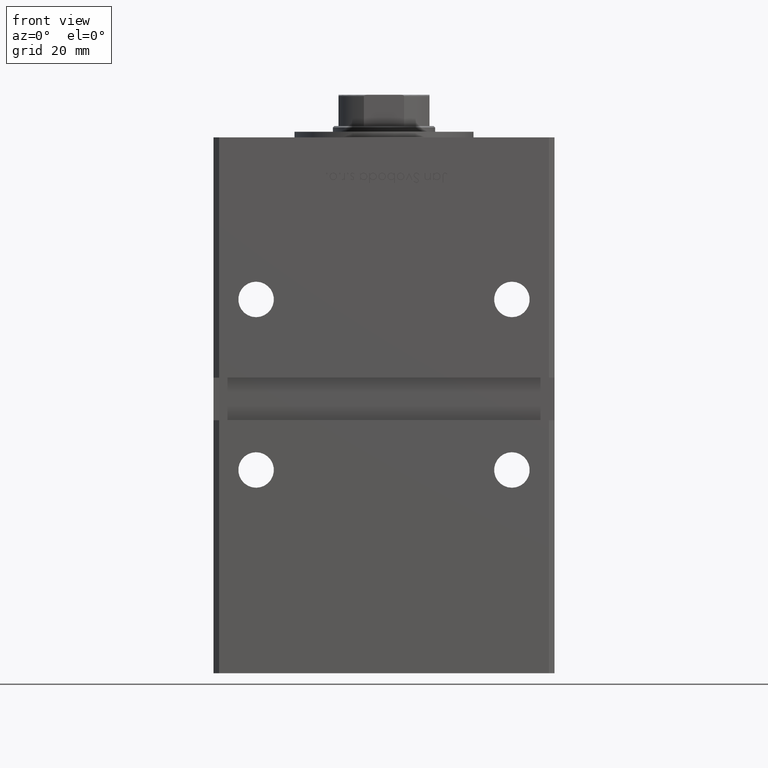
[diagram: clean part render]
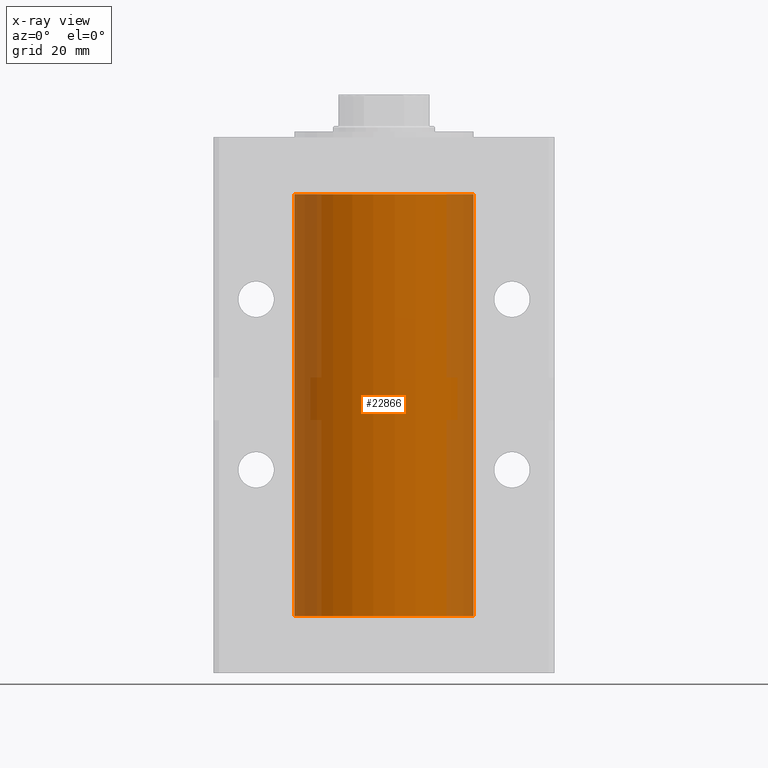
[diagram: x-ray — body ghosted, one internal face saturated and labeled with its STEP entity id]
A machine part, front view, then the same camera in x-ray: the body is ghosted and one INTERNAL B-rep face — a face not visible from any outside direction — is saturated and labeled: STEP entity #22866.
In plain terms, the highlighted cylindrical surface (partial cylindrical patch) has radius 31.5 mm, axis along (-0, -0, -1).
Its self-contained STEP definition (entity closure, byte-faithful):
#893 = ORIENTED_EDGE ( 'NONE', *, *, #38949, .T. ) ;
#2545 = ORIENTED_EDGE ( 'NONE', *, *, #35792, .F. ) ;
#4080 = CIRCLE ( 'NONE', #32391, 31.50000000000000000 ) ;
#4151 = EDGE_CURVE ( 'NONE', #37972, #30508, #30192, .T. ) ;
#4313 = DIRECTION ( 'NONE',  ( 1.000000000000000000, 0.000000000000000000, 0.000000000000000000 ) ) ;
#4342 = VERTEX_POINT ( 'NONE', #44964 ) ;
#4911 = CARTESIAN_POINT ( 'NONE',  ( -31.50000000000000000, 0.000000000000000000, 148.5000000000000000 ) ) ;
#5352 = EDGE_LOOP ( 'NONE', ( #34358, #893, #40226, #2545 ) ) ;
#7266 = CYLINDRICAL_SURFACE ( 'NONE', #25111, 31.50000000000000000 ) ;
#13231 = DIRECTION ( 'NONE',  ( -0.000000000000000000, -0.000000000000000000, -1.000000000000000000 ) ) ;
#18534 = CARTESIAN_POINT ( 'NONE',  ( 31.50000000000000000, 3.857637417314162689E-15, 0.000000000000000000 ) ) ;
#18669 = DIRECTION ( 'NONE',  ( -0.000000000000000000, 0.000000000000000000, 1.000000000000000000 ) ) ;
#21388 = CARTESIAN_POINT ( 'NONE',  ( 31.50000000000000000, 3.857637417314162689E-15, 148.5000000000000000 ) ) ;
#22041 = FACE_OUTER_BOUND ( 'NONE', #5352, .T. ) ;
#22866 = ADVANCED_FACE ( 'NONE', ( #22041 ), #7266, .F. ) ;
#25111 = AXIS2_PLACEMENT_3D ( 'NONE', #52110, #40271, #36253 ) ;
#25298 = LINE ( 'NONE', #4911, #29658 ) ;
#26411 = LINE ( 'NONE', #51143, #31474 ) ;
#26983 = DIRECTION ( 'NONE',  ( 1.000000000000000000, 0.000000000000000000, 0.000000000000000000 ) ) ;
#29658 = VECTOR ( 'NONE', #13231, 1000.000000000000000 ) ;
#30192 = CIRCLE ( 'NONE', #39651, 31.50000000000000000 ) ;
#30508 = VERTEX_POINT ( 'NONE', #18534 ) ;
#31455 = CARTESIAN_POINT ( 'NONE',  ( 0.000000000000000000, 0.000000000000000000, 148.5000000000000000 ) ) ;
#31474 = VECTOR ( 'NONE', #37714, 1000.000000000000000 ) ;
#32391 = AXIS2_PLACEMENT_3D ( 'NONE', #31455, #35497, #4313 ) ;
#34358 = ORIENTED_EDGE ( 'NONE', *, *, #40259, .T. ) ;
#35497 = DIRECTION ( 'NONE',  ( -0.000000000000000000, 0.000000000000000000, 1.000000000000000000 ) ) ;
#35792 = EDGE_CURVE ( 'NONE', #4342, #37972, #25298, .T. ) ;
#36253 = DIRECTION ( 'NONE',  ( -1.000000000000000000, 0.000000000000000000, 0.000000000000000000 ) ) ;
#37714 = DIRECTION ( 'NONE',  ( -0.000000000000000000, -0.000000000000000000, -1.000000000000000000 ) ) ;
#37972 = VERTEX_POINT ( 'NONE', #47990 ) ;
#38949 = EDGE_CURVE ( 'NONE', #42917, #30508, #26411, .T. ) ;
#39090 = CARTESIAN_POINT ( 'NONE',  ( 0.000000000000000000, 0.000000000000000000, 0.000000000000000000 ) ) ;
#39651 = AXIS2_PLACEMENT_3D ( 'NONE', #39090, #18669, #26983 ) ;
#40226 = ORIENTED_EDGE ( 'NONE', *, *, #4151, .F. ) ;
#40259 = EDGE_CURVE ( 'NONE', #4342, #42917, #4080, .T. ) ;
#40271 = DIRECTION ( 'NONE',  ( -0.000000000000000000, -0.000000000000000000, -1.000000000000000000 ) ) ;
#42917 = VERTEX_POINT ( 'NONE', #21388 ) ;
#44964 = CARTESIAN_POINT ( 'NONE',  ( -31.50000000000000000, 0.000000000000000000, 148.5000000000000000 ) ) ;
#47990 = CARTESIAN_POINT ( 'NONE',  ( -31.50000000000000000, 0.000000000000000000, 0.000000000000000000 ) ) ;
#51143 = CARTESIAN_POINT ( 'NONE',  ( 31.50000000000000000, 3.857637417314162689E-15, 148.5000000000000000 ) ) ;
#52110 = CARTESIAN_POINT ( 'NONE',  ( 0.000000000000000000, 0.000000000000000000, 148.5000000000000000 ) ) ;